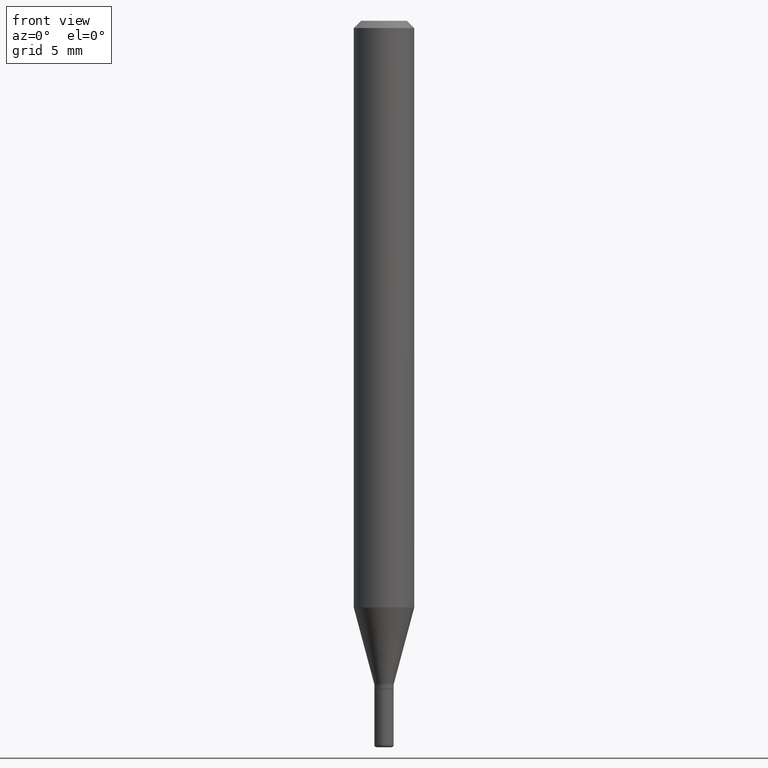
[diagram: clean part render]
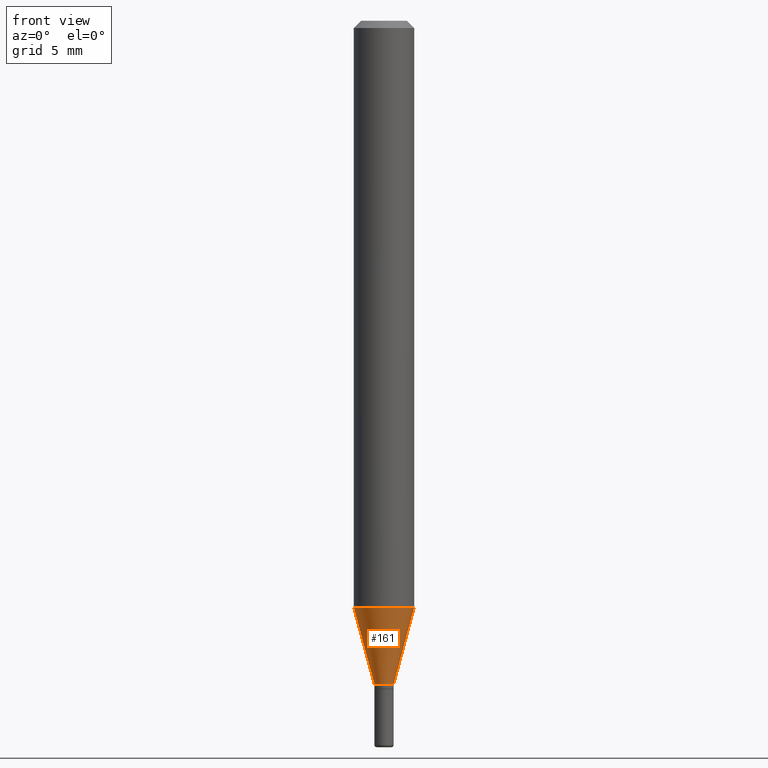
[diagram: same view with one face highlighted and labeled with its STEP entity id]
A machine part, front view. The second image highlights one B-rep face of the part: STEP entity #161.
In plain terms, the highlighted conical surface has half-angle 15 deg.
Its self-contained STEP definition (entity closure, byte-faithful):
#6 = VECTOR ( 'NONE', #191, 39.37007874015748854 ) ;
#14 = DIRECTION ( 'NONE',  ( 1.000000000000000000, -6.982962677686256455E-15, 0.000000000000000000 ) ) ;
#19 = CARTESIAN_POINT ( 'NONE',  ( 3.350292264473637608E-29, -4.783329434215110683E-15, -1.370000000000000329 ) ) ;
#25 = CARTESIAN_POINT ( 'NONE',  ( 2.962411176570810218E-29, -4.229538039829860109E-15, -1.211387840678323391 ) ) ;
#37 = CARTESIAN_POINT ( 'NONE',  ( -0.02000000000000008021, -4.213334858521442823E-15, -1.370000000000000329 ) ) ;
#47 = EDGE_LOOP ( 'NONE', ( #279, #54, #126, #198 ) ) ;
#54 = ORIENTED_EDGE ( 'NONE', *, *, #397, .T. ) ;
#70 = CARTESIAN_POINT ( 'NONE',  ( -0.02000000000000008021, -4.641220887063090519E-15, -1.370000000000000329 ) ) ;
#73 = CARTESIAN_POINT ( 'NONE',  ( 0.06250000000000000000, -4.665973207185250989E-15, -1.211387840678323391 ) ) ;
#80 = DIRECTION ( 'NONE',  ( 1.000000000000000000, -6.982962677686256455E-15, 0.000000000000000000 ) ) ;
#126 = ORIENTED_EDGE ( 'NONE', *, *, #274, .T. ) ;
#149 = DIRECTION ( 'NONE',  ( -2.445468806185136597E-29, 3.491481338843145583E-15, 1.000000000000000000 ) ) ;
#161 = ADVANCED_FACE ( 'NONE', ( #464 ), #165, .T. ) ;
#165 = CONICAL_SURFACE ( 'NONE', #215, 0.02000000000000008021, 0.2617993877991493523 ) ;
#170 = DIRECTION ( 'NONE',  ( -2.445468806185136597E-29, 3.491481338843145583E-15, 1.000000000000000000 ) ) ;
#173 = AXIS2_PLACEMENT_3D ( 'NONE', #199, #436, #80 ) ;
#188 = LINE ( 'NONE', #70, #6 ) ;
#191 = DIRECTION ( 'NONE',  ( -0.2588190451025206285, 5.211531920934544731E-15, 0.9659258262890682012 ) ) ;
#192 = CARTESIAN_POINT ( 'NONE',  ( 0.02000000000000008021, -4.922988687768836490E-15, -1.370000000000000329 ) ) ;
#198 = ORIENTED_EDGE ( 'NONE', *, *, #439, .F. ) ;
#199 = CARTESIAN_POINT ( 'NONE',  ( 3.350292264473637608E-29, -4.783329434215110683E-15, -1.370000000000000329 ) ) ;
#215 = AXIS2_PLACEMENT_3D ( 'NONE', #19, #170, #14 ) ;
#229 = EDGE_CURVE ( 'NONE', #395, #516, #188, .T. ) ;
#244 = VERTEX_POINT ( 'NONE', #73 ) ;
#257 = AXIS2_PLACEMENT_3D ( 'NONE', #25, #149, #341 ) ;
#270 = CARTESIAN_POINT ( 'NONE',  ( -0.06250000000000000000, -3.785448829979796704E-15, -1.211387840678323391 ) ) ;
#274 = EDGE_CURVE ( 'NONE', #403, #244, #346, .T. ) ;
#279 = ORIENTED_EDGE ( 'NONE', *, *, #229, .F. ) ;
#288 = VECTOR ( 'NONE', #476, 39.37007874015748854 ) ;
#314 = CIRCLE ( 'NONE', #173, 0.02000000000000008021 ) ;
#341 = DIRECTION ( 'NONE',  ( 1.000000000000000000, -6.982962677686270655E-15, 0.000000000000000000 ) ) ;
#346 = LINE ( 'NONE', #348, #288 ) ;
#348 = CARTESIAN_POINT ( 'NONE',  ( 0.02000000000000008021, -4.922988687768836490E-15, -1.370000000000000329 ) ) ;
#395 = VERTEX_POINT ( 'NONE', #37 ) ;
#397 = EDGE_CURVE ( 'NONE', #395, #403, #314, .T. ) ;
#403 = VERTEX_POINT ( 'NONE', #192 ) ;
#417 = CIRCLE ( 'NONE', #257, 0.06250000000000000000 ) ;
#436 = DIRECTION ( 'NONE',  ( -2.445468806185136597E-29, 3.491481338843145583E-15, 1.000000000000000000 ) ) ;
#439 = EDGE_CURVE ( 'NONE', #516, #244, #417, .T. ) ;
#464 = FACE_OUTER_BOUND ( 'NONE', #47, .T. ) ;
#476 = DIRECTION ( 'NONE',  ( 0.2588190451025206285, 1.565188264969627095E-15, 0.9659258262890682012 ) ) ;
#516 = VERTEX_POINT ( 'NONE', #270 ) ;